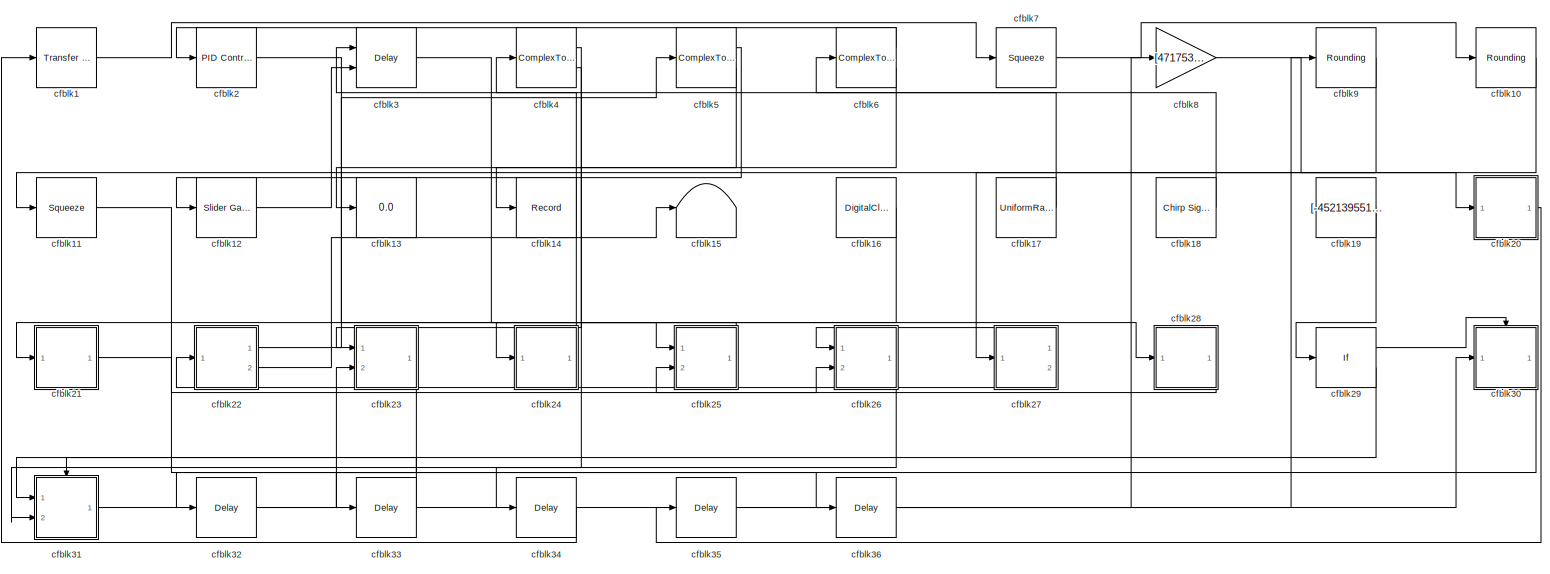
[diagram: root canvas - part 1/1, most of the canvas]
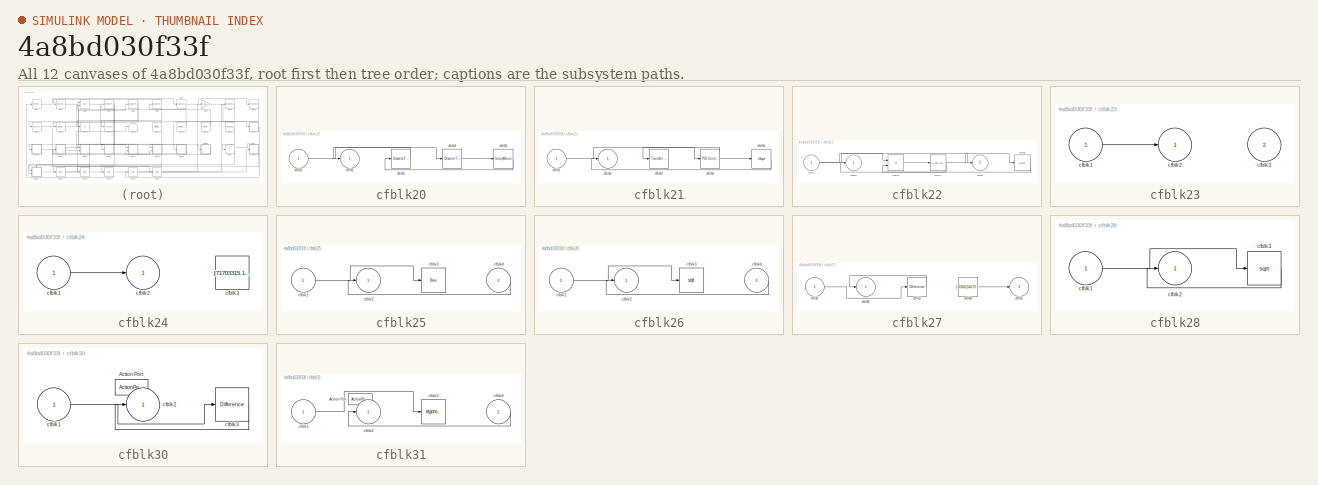
[diagram: thumbnail index - all 12 canvases of the model, root first then tree order]
MODEL slx_4a8bd030f33f
KIND model
CONFIG AbsTol = auto
CONFIG EnableMultiTasking = off
CONFIG FixedStep = auto
CONFIG MaxStep = auto
CONFIG MinStep = auto
CONFIG RelTol = 1e-3
CONFIG SampleTimeConstraint = Unconstrained
CONFIG SolverName = VariableStepAuto
CONFIG StartTime = 0.0
CONFIG StopTime = 10.0
BLOCK [Reference] cfblk1  REF=simulink/Discrete/Transfer Fcn
First Order
  Ports = [1, 1]
  SourceBlock = simulink/Discrete/Transfer Fcn\nFirst Order
  SourceProductBaseCode = SL
  SourceType = First Order Transfer Fcn
BLOCK [Rounding] cfblk10
BLOCK [Squeeze] cfblk11
BLOCK [Reference] cfblk12  REF=simulink/Math
Operations/Slider
Gain
  Ports = [1, 1]
  SourceBlock = simulink/Math\nOperations/Slider\nGain
  SourceProductBaseCode = SL
  SourceType = Slider Gain
BLOCK [Display] cfblk13
  Decimation = 1
  Ports = [1]
BLOCK [Record] cfblk14
  FileSettingsInternal = {"entries":[{"content":{"excelSettings":{"content":{},"type":"Streamout.ExcelSettings"}},"type":"Streamout.FileSettingStorage","uuid":"8bc02c1d-e29f-4dca-9eb6-b2821a368347"}],"packageUris":["http://schema.mathworks.com/mf0/streamout_blocks/R2020a"],"version":"1.0"}
  Ports = [1]
  SignalsInternal = {"entries":[{"content":{"signals":[{"content":{"blockPath":["sampleModel14/cfblk14"],"channel":[],"dimensions":[1],"domain":"sampleModel14/cfblk14","lineColor":"#64d413","plots":[1],"port":1,"sid":[""],"signalID":614,"signalName":"cfblk5:2"},"type":"RecordBlkView.Signal","uuid":"cc0fb8e1-f3dc-46df-a7d1-20c90b362ce7"}]},"type":"RecordBlkView.InputSignals","uuid":"eb60c859-c640-48af-ab2d-2101977728c...<+95ch>
  VisualizationBindings = {"sparklinesplugin":{"info":[{"bindingParametersList":[],"subplotID":1}]}}
BLOCK [Terminator] cfblk15
BLOCK [DigitalClock] cfblk16
BLOCK [UniformRandomNumber] cfblk17
  Maximum = [4346474114.246968]
  Minimum = [-8433829798.904942]
  SampleTime = 0.1
  Seed = [83224321.000000]
BLOCK [Reference] cfblk18  REF=simulink/Sources/Chirp Signal
  Ports = [0, 1]
  SourceBlock = simulink/Sources/Chirp Signal
  SourceProductBaseCode = SL
  SourceType = chirp
BLOCK [Constant] cfblk19
  SampleTime = 1
  Value = [-452139551.555448]
BLOCK [Reference] cfblk2  REF=slpidlib/PID Controller
  Ports = [1, 1]
  SourceBlock = slpidlib/PID Controller
  SourceProductBaseCode = SL
  SourceType = PID 1dof
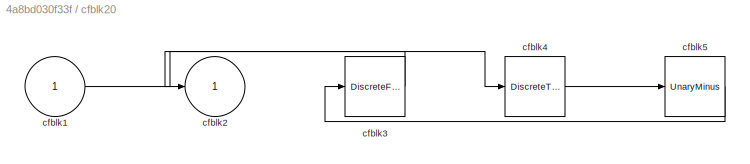
BLOCK [SubSystem] cfblk20
  Ports = [1, 1]
  RequestExecContextInheritance = off
BLOCK [Inport] cfblk20/cfblk1
BLOCK [Outport] cfblk20/cfblk2
BLOCK [DiscreteFilter] cfblk20/cfblk3
  InputPortMap = u0
  Ports = [1, 1]
  SampleTime = 1
BLOCK [DiscreteTransferFcn] cfblk20/cfblk4
  InputPortMap = u0
  Ports = [1, 1]
  SampleTime = 1
BLOCK [UnaryMinus] cfblk20/cfblk5
BLOCK [SubSystem] cfblk21
  Ports = [1, 1]
  RequestExecContextInheritance = off
BLOCK [Inport] cfblk21/cfblk1
BLOCK [Outport] cfblk21/cfblk2
BLOCK [Reference] cfblk21/cfblk3  REF=simulink/Discrete/Transfer Fcn
Lead or Lag
  Ports = [1, 1]
  SourceBlock = simulink/Discrete/Transfer Fcn\nLead or Lag
  SourceProductBaseCode = SL
  SourceType = Lead or Lag Compensator
BLOCK [Reference] cfblk21/cfblk4  REF=slpidlib/PID Controller
  Ports = [1, 1]
  SourceBlock = slpidlib/PID Controller
  SourceProductBaseCode = SL
  SourceType = PID 1dof
BLOCK [Sqrt] cfblk21/cfblk5
  AlgorithmType = Newton-Raphson
  Operator = rSqrt
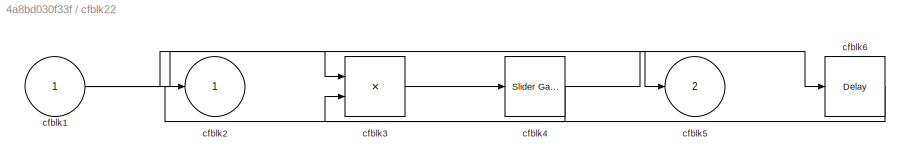
BLOCK [SubSystem] cfblk22
  Ports = [1, 2]
  RequestExecContextInheritance = off
BLOCK [Inport] cfblk22/cfblk1
BLOCK [Outport] cfblk22/cfblk2
BLOCK [Product] cfblk22/cfblk3
  Ports = [2, 1]
BLOCK [Reference] cfblk22/cfblk4  REF=simulink/Math
Operations/Slider
Gain
  Ports = [1, 1]
  SourceBlock = simulink/Math\nOperations/Slider\nGain
  SourceProductBaseCode = SL
  SourceType = Slider Gain
BLOCK [Outport] cfblk22/cfblk5
  Port = 2
BLOCK [Delay] cfblk22/cfblk6
  InputPortMap = u0
  Ports = [1, 1]
  SampleTime = 1
BLOCK [SubSystem] cfblk23
  Ports = [2, 1]
  RequestExecContextInheritance = off
BLOCK [Inport] cfblk23/cfblk1
BLOCK [Outport] cfblk23/cfblk2
BLOCK [Inport] cfblk23/cfblk3
  Port = 2
BLOCK [SubSystem] cfblk24
  Ports = [1, 1]
  RequestExecContextInheritance = off
BLOCK [Inport] cfblk24/cfblk1
BLOCK [Outport] cfblk24/cfblk2
BLOCK [Constant] cfblk24/cfblk3
  SampleTime = 1
  Value = [71703315.167210]
BLOCK [SubSystem] cfblk25
  Ports = [2, 1]
  RequestExecContextInheritance = off
BLOCK [Inport] cfblk25/cfblk1
BLOCK [Outport] cfblk25/cfblk2
BLOCK [Bias] cfblk25/cfblk3
  Bias = [-897288534.639395]
  SaturateOnIntegerOverflow = off
BLOCK [Inport] cfblk25/cfblk4
  Port = 2
BLOCK [SubSystem] cfblk26
  Ports = [2, 1]
  RequestExecContextInheritance = off
BLOCK [Inport] cfblk26/cfblk1
BLOCK [Outport] cfblk26/cfblk2
BLOCK [Sqrt] cfblk26/cfblk3
BLOCK [Inport] cfblk26/cfblk4
  Port = 2
BLOCK [SubSystem] cfblk27
  Ports = [1, 2]
  RequestExecContextInheritance = off
BLOCK [Inport] cfblk27/cfblk1
BLOCK [Outport] cfblk27/cfblk2
BLOCK [Reference] cfblk27/cfblk3  REF=simulink/Discrete/Difference
  Ports = [1, 1]
  SourceBlock = simulink/Discrete/Difference
  SourceProductBaseCode = SL
  SourceType = Difference
BLOCK [Constant] cfblk27/cfblk4
  SampleTime = 1
  Value = [-936624675.996184]
BLOCK [Outport] cfblk27/cfblk5
  Port = 2
BLOCK [SubSystem] cfblk28
  Ports = [1, 1]
  RequestExecContextInheritance = off
BLOCK [Inport] cfblk28/cfblk1
BLOCK [Outport] cfblk28/cfblk2
BLOCK [Sqrt] cfblk28/cfblk3
BLOCK [If] cfblk29
  IfExpression = u1 >= 0
  Ports = [1, 2]
  SampleTime = 1
BLOCK [Delay] cfblk3
  InputPortMap = u0,e6
  Ports = [2, 1]
  SampleTime = 1
  ShowEnablePort = on
BLOCK [SubSystem] cfblk30
  Ports = [1, 1, 0, 0, 0, 0, 0, 1]
  RequestExecContextInheritance = off
  TreatAsAtomicUnit = on
BLOCK [ActionPort] cfblk30/Action Port
  ActionPortLabel = if(u1 >= 0)
BLOCK [Inport] cfblk30/cfblk1
BLOCK [Outport] cfblk30/cfblk2
BLOCK [Reference] cfblk30/cfblk3  REF=simulink/Discrete/Difference
  Ports = [1, 1]
  SourceBlock = simulink/Discrete/Difference
  SourceProductBaseCode = SL
  SourceType = Difference
BLOCK [SubSystem] cfblk31
  Ports = [2, 1, 0, 0, 0, 0, 0, 1]
  RequestExecContextInheritance = off
  TreatAsAtomicUnit = on
BLOCK [ActionPort] cfblk31/Action Port
  ActionPortLabel = else
BLOCK [Inport] cfblk31/cfblk1
BLOCK [Outport] cfblk31/cfblk2
BLOCK [Trigonometry] cfblk31/cfblk3
  Ports = [1, 1]
BLOCK [Inport] cfblk31/cfblk4
  Port = 2
BLOCK [Delay] cfblk32
  InputPortMap = u0
  Ports = [1, 1]
  SampleTime = 1
BLOCK [Delay] cfblk33
  InputPortMap = u0
  Ports = [1, 1]
  SampleTime = 1
BLOCK [Delay] cfblk34
  InputPortMap = u0
  Ports = [1, 1]
  SampleTime = 1
BLOCK [Delay] cfblk35
  InputPortMap = u0
  Ports = [1, 1]
  SampleTime = 1
BLOCK [Delay] cfblk36
  InputPortMap = u0
  Ports = [1, 1]
  SampleTime = 1
BLOCK [ComplexToRealImag] cfblk4
  Ports = [1, 2]
BLOCK [ComplexToRealImag] cfblk5
  Ports = [1, 2]
BLOCK [ComplexToMagnitudeAngle] cfblk6
  Ports = [1, 2]
BLOCK [Squeeze] cfblk7
BLOCK [Gain] cfblk8
  Gain = [471753972.732700]
BLOCK [Rounding] cfblk9
LINE cfblk10:1 -> cfblk27:1
LINE cfblk11:1 -> cfblk36:1
LINE cfblk12:1 -> cfblk3:2
LINE cfblk16:1 -> cfblk21:1
LINE cfblk17:1 -> cfblk3:1
LINE cfblk18:1 -> cfblk6:1
LINE cfblk19:1 -> cfblk29:1
LINE cfblk1:1 -> cfblk7:1
LINE cfblk20/cfblk1:1 -> cfblk20/cfblk4:1
LINE cfblk20/cfblk3:1 -> cfblk20/cfblk2:1
LINE cfblk20/cfblk4:1 -> cfblk20/cfblk5:1
LINE cfblk20/cfblk5:1 -> cfblk20/cfblk3:1
LINE cfblk20:1 -> cfblk35:1
LINE cfblk21/cfblk1:1 -> cfblk21/cfblk4:1
NET cfblk21/cfblk4:1 -> cfblk21/cfblk3:1, cfblk21/cfblk5:1
LINE cfblk21/cfblk5:1 -> cfblk21/cfblk2:1
LINE cfblk21:1 -> cfblk26:2
NET cfblk22/cfblk1:1 -> cfblk22/cfblk3:1, cfblk22/cfblk5:1
LINE cfblk22/cfblk3:1 -> cfblk22/cfblk4:1
NET cfblk22/cfblk4:1 -> cfblk22/cfblk2:1, cfblk22/cfblk6:1
LINE cfblk22/cfblk6:1 -> cfblk22/cfblk3:2
LINE cfblk22:1 -> cfblk5:1
LINE cfblk22:2 -> cfblk15:1
LINE cfblk23/cfblk1:1 -> cfblk23/cfblk2:1
LINE cfblk23:1 -> cfblk32:1
LINE cfblk24/cfblk1:1 -> cfblk24/cfblk2:1
LINE cfblk24:1 -> cfblk4:1
LINE cfblk25/cfblk1:1 -> cfblk25/cfblk3:1
LINE cfblk25/cfblk4:1 -> cfblk25/cfblk2:1
LINE cfblk25:1 -> cfblk24:1
LINE cfblk26/cfblk1:1 -> cfblk26/cfblk3:1
LINE cfblk26/cfblk4:1 -> cfblk26/cfblk2:1
LINE cfblk26:1 -> cfblk31:2
LINE cfblk27/cfblk1:1 -> cfblk27/cfblk3:1
LINE cfblk27/cfblk3:1 -> cfblk27/cfblk2:1
LINE cfblk27/cfblk4:1 -> cfblk27/cfblk5:1
LINE cfblk27:1 -> cfblk26:1
LINE cfblk27:2 -> cfblk22:1
LINE cfblk28/cfblk1:1 -> cfblk28/cfblk3:1
LINE cfblk28/cfblk3:1 -> cfblk28/cfblk2:1
LINE cfblk28:1 -> cfblk25:2
LINE cfblk29:1 -> cfblk30:ifaction
LINE cfblk29:2 -> cfblk31:ifaction
LINE cfblk2:1 -> cfblk25:1
LINE cfblk30/cfblk1:1 -> cfblk30/cfblk3:1
LINE cfblk30/cfblk3:1 -> cfblk30/cfblk2:1
LINE cfblk30:1 -> cfblk33:1
LINE cfblk31/cfblk1:1 -> cfblk31/cfblk3:1
LINE cfblk31/cfblk4:1 -> cfblk31/cfblk2:1
LINE cfblk31:1 -> cfblk23:2
LINE cfblk32:1 -> cfblk30:1
LINE cfblk33:1 -> cfblk31:1
LINE cfblk34:1 -> cfblk1:1
LINE cfblk35:1 -> cfblk8:1
LINE cfblk36:1 -> cfblk9:1
LINE cfblk3:1 -> cfblk28:1
LINE cfblk4:1 -> cfblk23:1
LINE cfblk4:2 -> cfblk34:1
LINE cfblk5:1 -> cfblk12:1
LINE cfblk5:2 -> cfblk14:1
LINE cfblk6:1 -> cfblk2:1
LINE cfblk6:2 -> cfblk13:1
LINE cfblk7:1 -> cfblk10:1
LINE cfblk8:1 -> cfblk20:1
LINE cfblk9:1 -> cfblk11:1
note: NET lines group one-source signal fan-out (src -> all destinations, sorted); 1:1 wires keep LINE
